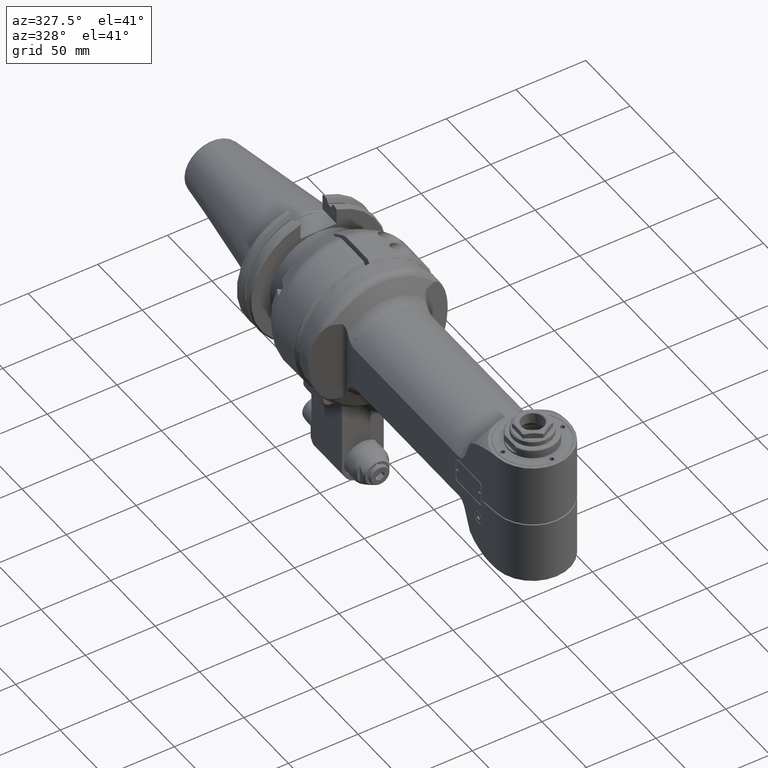
[diagram: clean part render]
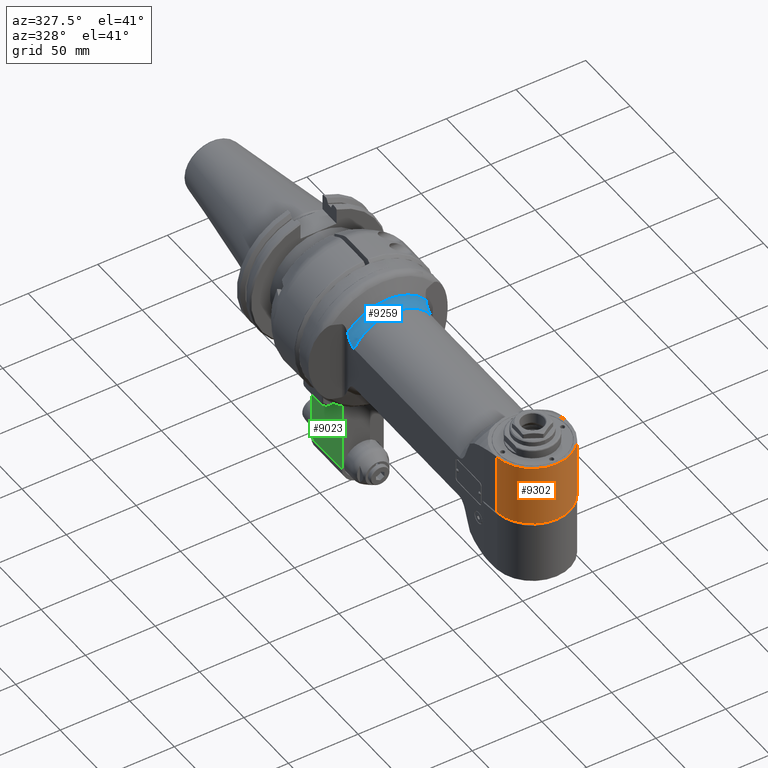
[diagram: same view with three faces highlighted in distinct colors, each labeled with its STEP entity id]
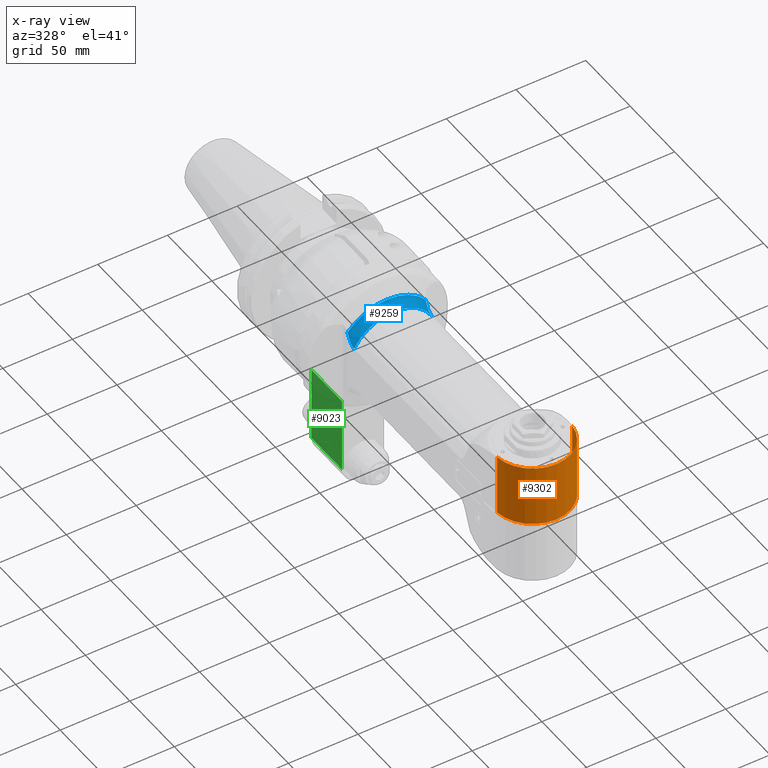
[diagram: x-ray of the same camera — body ghosted, the three highlighted faces saturated]
A machine part, auxiliary view with three faces highlighted in distinct colors.
The next image is the same camera in x-ray (body ghosted, the three faces saturated) — at least one of them is partly hidden behind the body in this view.
Their STEP definitions:

[orange] entity #9302 — the highlighted cylindrical surface (partial cylindrical patch) has radius 27 mm, axis along (0, 0, -1).
#855=LINE('',#17111,#1453);
#856=LINE('',#17114,#1454);
#1453=VECTOR('',#12871,44.33431457505);
#1454=VECTOR('',#12874,44.33431457505);
#1698=CYLINDRICAL_SURFACE('',#10377,27.);
#2472=FACE_OUTER_BOUND('',#3091,.T.);
#3091=EDGE_LOOP('',(#8259,#8260,#8261,#8262));
#3694=CIRCLE('',#10375,27.);
#3696=CIRCLE('',#10378,27.);
#4540=VERTEX_POINT('',#17078);
#4541=VERTEX_POINT('',#17079);
#4549=VERTEX_POINT('',#17110);
#4550=VERTEX_POINT('',#17112);
#5811=EDGE_CURVE('',#4540,#4541,#3694,.T.);
#5821=EDGE_CURVE('',#4540,#4549,#855,.T.);
#5822=EDGE_CURVE('',#4550,#4549,#3696,.T.);
#5823=EDGE_CURVE('',#4550,#4541,#856,.T.);
#8259=ORIENTED_EDGE('',*,*,#5811,.F.);
#8260=ORIENTED_EDGE('',*,*,#5821,.T.);
#8261=ORIENTED_EDGE('',*,*,#5822,.F.);
#8262=ORIENTED_EDGE('',*,*,#5823,.T.);
#9302=ADVANCED_FACE('',(#2472),#1698,.T.);
#10375=AXIS2_PLACEMENT_3D('',#17080,#12863,#12864);
#10377=AXIS2_PLACEMENT_3D('',#17109,#12869,#12870);
#10378=AXIS2_PLACEMENT_3D('',#17113,#12872,#12873);
#12863=DIRECTION('center_axis',(0.,-1.,0.));
#12864=DIRECTION('ref_axis',(0.087155742747556,0.,-0.996194698091755));
#12869=DIRECTION('center_axis',(0.,1.,0.));
#12870=DIRECTION('ref_axis',(1.,0.,1.22464679914735E-16));
#12871=DIRECTION('',(1.859123302981E-14,1.,0.));
#12872=DIRECTION('center_axis',(0.,1.,0.));
#12873=DIRECTION('ref_axis',(1.,0.,0.));
#12874=DIRECTION('',(3.013061904831E-14,-1.,0.));
#17078=CARTESIAN_POINT('',(192.3532050542,-45.,-26.89725684848));
#17079=CARTESIAN_POINT('',(192.3532050542,-45.,26.89725684848));
#17080=CARTESIAN_POINT('Origin',(190.,-45.,0.));
#17109=CARTESIAN_POINT('Origin',(190.,-54.0000024,0.));
#17110=CARTESIAN_POINT('',(192.3532050542,-0.6656854249492,-26.89725684848));
#17111=CARTESIAN_POINT('',(192.3532050542,-45.,-26.89725684848));
#17112=CARTESIAN_POINT('',(192.3532050542,-0.6656854249492,26.89725684848));
#17113=CARTESIAN_POINT('Origin',(190.,-0.6656854249492,0.));
#17114=CARTESIAN_POINT('',(192.3532050542,-0.6656854249492,26.89725684848));

[blue] entity #9259 — the highlighted toroidal blend (fillet) surface has major radius 40 mm and minor (blend) radius 8 mm.
#227=B_SPLINE_CURVE_WITH_KNOTS('',3,(#16369,#16370,#16371,#16372,#16373,
#16374,#16375,#16376,#16377,#16378,#16379,#16380),.UNSPECIFIED.,.F.,.F.,
(4,2,2,2,2,4),(-2.93597407218818,-2.82337724519284,-2.69378102431655,-2.51186335157645,
-2.32994567883634,-2.12339512890314),.UNSPECIFIED.);
#234=B_SPLINE_CURVE_WITH_KNOTS('',3,(#16516,#16517,#16518,#16519),
 .UNSPECIFIED.,.F.,.F.,(4,4),(-4.28837743495635,-4.06515165870658),
 .UNSPECIFIED.);
#235=B_SPLINE_CURVE_WITH_KNOTS('',3,(#16526,#16527,#16528,#16529,#16530,
#16531),.UNSPECIFIED.,.F.,.F.,(4,2,4),(1.62729685650287,1.71536395114816,
1.75183119798568),.UNSPECIFIED.);
#236=B_SPLINE_CURVE_WITH_KNOTS('',3,(#16532,#16533,#16534,#16535,#16536,
#16537,#16538,#16539,#16540,#16541,#16542,#16543),.UNSPECIFIED.,.F.,.F.,
(4,2,2,2,2,4),(-2.93602857360432,-2.81022163538033,-2.66127008993984,-2.44574033067297,
-2.2302105714061,-2.12135907273542),.UNSPECIFIED.);
#2429=FACE_OUTER_BOUND('',#3043,.T.);
#3043=EDGE_LOOP('',(#8006,#8007,#8008,#8009,#8010,#8011));
#3648=CIRCLE('',#10278,32.);
#3649=CIRCLE('',#10279,36.61905390607);
#4427=VERTEX_POINT('',#16365);
#4429=VERTEX_POINT('',#16368);
#4451=VERTEX_POINT('',#16499);
#4452=VERTEX_POINT('',#16521);
#4453=VERTEX_POINT('',#16523);
#4454=VERTEX_POINT('',#16525);
#5656=EDGE_CURVE('',#4429,#4427,#227,.T.);
#5681=EDGE_CURVE('',#4451,#4427,#234,.T.);
#5682=EDGE_CURVE('',#4452,#4429,#3648,.T.);
#5683=EDGE_CURVE('',#4451,#4453,#3649,.T.);
#5684=EDGE_CURVE('',#4453,#4454,#235,.T.);
#5685=EDGE_CURVE('',#4452,#4454,#236,.T.);
#8006=ORIENTED_EDGE('',*,*,#5682,.T.);
#8007=ORIENTED_EDGE('',*,*,#5656,.T.);
#8008=ORIENTED_EDGE('',*,*,#5681,.F.);
#8009=ORIENTED_EDGE('',*,*,#5683,.T.);
#8010=ORIENTED_EDGE('',*,*,#5684,.T.);
#8011=ORIENTED_EDGE('',*,*,#5685,.F.);
#8868=TOROIDAL_SURFACE('',#10277,40.,8.);
#9259=ADVANCED_FACE('',(#2429),#8868,.F.);
#10277=AXIS2_PLACEMENT_3D('',#16520,#12640,#12641);
#10278=AXIS2_PLACEMENT_3D('',#16522,#12642,#12643);
#10279=AXIS2_PLACEMENT_3D('',#16524,#12644,#12645);
#12640=DIRECTION('center_axis',(-1.,0.,0.));
#12641=DIRECTION('ref_axis',(0.,-1.,-1.22464679914735E-16));
#12642=DIRECTION('center_axis',(-1.,0.,0.));
#12643=DIRECTION('ref_axis',(0.,-0.484122918275906,-0.875000000000012));
#12644=DIRECTION('center_axis',(1.,0.,0.));
#12645=DIRECTION('ref_axis',(0.,-0.639797587775472,0.768543457897266));
#16365=CARTESIAN_POINT('',(26.80083020114,-20.88509764293,27.99999999999));
#16368=CARTESIAN_POINT('',(32.99009987301,-15.49193338483,28.));
#16369=CARTESIAN_POINT('Ctrl Pts',(32.99009987301,-15.4919333848297,28.));
#16370=CARTESIAN_POINT('Ctrl Pts',(32.6147771163589,-15.4919333848297,28.));
#16371=CARTESIAN_POINT('Ctrl Pts',(32.1698889724911,-15.5620993782773,28.));
#16372=CARTESIAN_POINT('Ctrl Pts',(31.3977248933945,-15.7977099228234,28.));
#16373=CARTESIAN_POINT('Ctrl Pts',(30.9310586317008,-16.0234209939818,28.));
#16374=CARTESIAN_POINT('Ctrl Pts',(30.053798895377,-16.5789816504194,28.));
#16375=CARTESIAN_POINT('Ctrl Pts',(29.550628761613,-17.0081024201193,28.));
#16376=CARTESIAN_POINT('Ctrl Pts',(28.6408811523053,-17.9652022129463,28.));
#16377=CARTESIAN_POINT('Ctrl Pts',(28.233192022949,-18.4921239661789,28.));
#16378=CARTESIAN_POINT('Ctrl Pts',(27.5057921800016,-19.5634036380883,28.));
#16379=CARTESIAN_POINT('Ctrl Pts',(27.1316615896585,-20.2094567222488,28.));
#16380=CARTESIAN_POINT('Ctrl Pts',(26.8008302011102,-20.8850976429154,28.));
#16499=CARTESIAN_POINT('',(25.73963757672,-23.42878235573,28.1433343139));
#16516=CARTESIAN_POINT('Ctrl Pts',(25.7396375767161,-23.4287823557287,28.1433343139008));
#16517=CARTESIAN_POINT('Ctrl Pts',(26.0321978822101,-22.54486279581,28.0628339896326));
#16518=CARTESIAN_POINT('Ctrl Pts',(26.3924447197713,-21.7191235309007,27.9999999999806));
#16519=CARTESIAN_POINT('Ctrl Pts',(26.8008302011102,-20.8850976429154,28.));
#16520=CARTESIAN_POINT('Origin',(32.99009987301,0.,0.));
#16521=CARTESIAN_POINT('',(32.99009987301,-15.49193338483,-28.));
#16522=CARTESIAN_POINT('Origin',(32.99009987301,0.,0.));
#16523=CARTESIAN_POINT('',(25.73963757708,-23.42878235471,-28.14333431379));
#16524=CARTESIAN_POINT('Origin',(25.73963757672,0.,0.));
#16525=CARTESIAN_POINT('',(26.80083020092,-20.88509764331,-28.));
#16526=CARTESIAN_POINT('Ctrl Pts',(25.7396375770564,-23.4287823547006,-28.1433343138071));
#16527=CARTESIAN_POINT('Ctrl Pts',(25.9417492669221,-22.8181373951341,-28.0877216546));
#16528=CARTESIAN_POINT('Ctrl Pts',(26.1821006615882,-22.2190845095428,-28.0386263368559));
#16529=CARTESIAN_POINT('Ctrl Pts',(26.5687080521752,-21.3664158943553,-28.0051242811777));
#16530=CARTESIAN_POINT('Ctrl Pts',(26.6841485560425,-21.1233909150549,-28.0000000000001));
#16531=CARTESIAN_POINT('Ctrl Pts',(26.8008302009176,-20.8850976433088,-28.));
#16532=CARTESIAN_POINT('Ctrl Pts',(32.99009987301,-15.4919333848297,-28.));
#16533=CARTESIAN_POINT('Ctrl Pts',(32.5707434122634,-15.4919333848297,-28.));
#16534=CARTESIAN_POINT('Ctrl Pts',(32.0752042743193,-15.5795640532649,-28.));
#16535=CARTESIAN_POINT('Ctrl Pts',(31.2080074002573,-15.8741350537825,-28.));
#16536=CARTESIAN_POINT('Ctrl Pts',(30.6847533920019,-16.1590740807169,-28.));
#16537=CARTESIAN_POINT('Ctrl Pts',(29.69452279622,-16.8630037215125,-28.));
#16538=CARTESIAN_POINT('Ctrl Pts',(29.1325458604225,-17.407552366296,-28.));
#16539=CARTESIAN_POINT('Ctrl Pts',(28.1323512917126,-18.608539452852,-28.));
#16540=CARTESIAN_POINT('Ctrl Pts',(27.6932483097344,-19.2642402902718,-28.));
#16541=CARTESIAN_POINT('Ctrl Pts',(27.1514292838462,-20.1999639756728,-28.));
#16542=CARTESIAN_POINT('Ctrl Pts',(26.9719387319417,-20.5356509781966,-28.));
#16543=CARTESIAN_POINT('Ctrl Pts',(26.8008302009176,-20.8850976433088,-28.));

[green] entity #9023 — the highlighted planar face has unit normal (1, 0, 0).
#471=LINE('',#14162,#1069);
#553=LINE('',#15012,#1151);
#561=LINE('',#15037,#1159);
#562=LINE('',#15039,#1160);
#1069=VECTOR('',#11009,54.5);
#1151=VECTOR('',#11425,54.5);
#1159=VECTOR('',#11451,34.5);
#1160=VECTOR('',#11454,34.5);
#1877=PLANE('',#9815);
#2193=FACE_OUTER_BOUND('',#2774,.T.);
#2774=EDGE_LOOP('',(#6867,#6868,#6869,#6870));
#3940=VERTEX_POINT('',#14159);
#3941=VERTEX_POINT('',#14161);
#4089=VERTEX_POINT('',#15009);
#4090=VERTEX_POINT('',#15011);
#4894=EDGE_CURVE('',#3940,#3941,#471,.T.);
#5116=EDGE_CURVE('',#4090,#4089,#553,.T.);
#5128=EDGE_CURVE('',#4090,#3940,#561,.T.);
#5129=EDGE_CURVE('',#3941,#4089,#562,.T.);
#6867=ORIENTED_EDGE('',*,*,#5129,.F.);
#6868=ORIENTED_EDGE('',*,*,#4894,.F.);
#6869=ORIENTED_EDGE('',*,*,#5128,.F.);
#6870=ORIENTED_EDGE('',*,*,#5116,.T.);
#9023=ADVANCED_FACE('',(#2193),#1877,.F.);
#9815=AXIS2_PLACEMENT_3D('',#15038,#11452,#11453);
#11009=DIRECTION('',(0.,0.,1.));
#11425=DIRECTION('',(0.,0.,1.));
#11451=DIRECTION('',(0.,1.,0.));
#11452=DIRECTION('center_axis',(1.,0.,0.));
#11453=DIRECTION('ref_axis',(0.,0.,1.));
#11454=DIRECTION('',(0.,-1.,0.));
#14159=CARTESIAN_POINT('',(-15.,39.5,-112.));
#14161=CARTESIAN_POINT('',(-15.,39.5,-57.5));
#14162=CARTESIAN_POINT('',(-15.,39.5,-112.));
#15009=CARTESIAN_POINT('',(-15.,5.,-57.5));
#15011=CARTESIAN_POINT('',(-15.,5.,-112.));
#15012=CARTESIAN_POINT('',(-15.,5.,-112.));
#15037=CARTESIAN_POINT('',(-15.,5.,-112.));
#15038=CARTESIAN_POINT('Origin',(-15.,1.505997599982,-63.45));
#15039=CARTESIAN_POINT('',(-15.,39.5,-57.5));